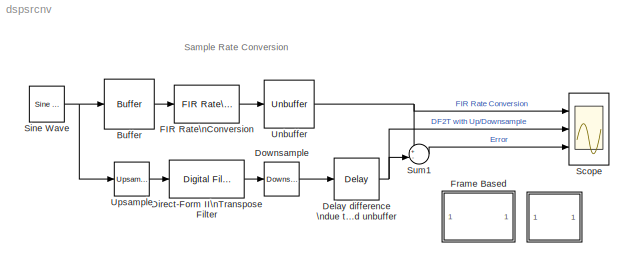
MODEL dspsrcnv
KIND model
BLOCK [SubSystem]  
  MaskDisplay = disp('Info')
  MaskIconFrame = on
  MaskIconOpaque = on
  MaskIconRotate = none
  MaskIconUnits = autoscale
  Ports = []
  TreatAsAtomicUnit = off
BLOCK [Reference] Buffer  REF=dspbuff3/Buffer
  N = 5
  Ports = [1, 1]
  SourceBlock = dspbuff3/Buffer
  SourceType = Buffer
  V = 0
  ic = 0
BLOCK [Reference] Delay difference \ndue to buffer \nand unbuffer  REF=dspsigops/Delay
  Ports = [1, 1]
  SourceBlock = dspsigops/Delay
  SourceType = Delay
  delay = 39
  dif_ic_for_ch = off
  dif_ic_for_dly = off
  dly_unit = Samples
  ic = 0
  ic_detail = on
  reset_popup = None
BLOCK [Reference] Direct-Form II\nTranspose Filter  REF=dsparch4/Digital Filter
  AllPoleFiltStruct = Direct form
  BiQuadCoeffs = [1 0.3 0.4 1 0.1 0.2]
  CoeffSource = Specify via dialog
  DenCoeffs = [1 0.1]
  FIRFiltStruct = Direct form
  FiltPerSampPopup = One filter per frame
  IC = 0
  ICden = 0
  ICnum = 0
  IIRFiltStruct = Direct form II transposed
  LatticeCoeffs = [0.2 0.4]
  NumCoeffs = fir1(63,1/8)*8
  Ports = [1, 1]
  SourceBlock = dsparch4/Digital Filter
  SourceType = Digital Filter
  TypePopup = FIR (all zeros)
  accumFracLength = 30
  accumMode = Same as product output
  accumWordLength = 32
  additionalParams = off
  allowOverrides = on
  denIgnore = on
  firstCoeffFracLength = 15
  firstCoeffMode = Same as input
  firstCoeffWordLength = 16
  memoryFracLength = 15
  memoryMode = Same as input
  memoryWordLength = 16
  outputFracLength = 15
  outputMode = Same as input
  outputWordLength = 16
  overflowMode = off
  prodOutputFracLength = 30
  prodOutputMode = Same as input
  prodOutputWordLength = 32
  roundingMode = Floor
  secondCoeffFracLength = 15
  secondCoeffMode = Same as numerator
  secondCoeffWordLength = 16
  showAcc = off
  showCoeff = off
  showMem = off
  showMpy = off
  showOut = off
  thirdCoeffFracLength = 15
  thirdCoeffMode = Same as input
  thirdCoeffWordLength = 16
BLOCK [Reference] Downsample  REF=dspsigops/Downsample
  N = 5
  Ports = [1, 1]
  SourceBlock = dspsigops/Downsample
  SourceType = Downsample
  fmode = Maintain input frame size
  ic = 0
  phase = 0
  smode = Allow multirate
BLOCK [Reference] FIR Rate\nConversion  REF=dspmlti3/FIR Rate\nConversion
  L = 8
  M = 5
  Ports = [1, 1]
  SourceBlock = dspmlti3/FIR Rate\nConversion
  SourceType = FIR Rate Conversion
  accumFracLength = 30
  accumMode = Same as product output
  accumWordLength = 32
  additionalParams = off
  allowOverrides = on
  firstCoeffFracLength = 15
  firstCoeffMode = Same word length as input
  firstCoeffWordLength = 16
  h = fir1(63,1/8)*8
  outputFracLength = 15
  outputMode = Same as accumulator
  outputWordLength = 16
  overflowMode = off
  prodOutputFracLength = 30
  prodOutputMode = Same as input
  prodOutputWordLength = 32
  roundingMode = Floor
BLOCK [SubSystem] Frame Based
  MaskDisplay = disp('Frame-based\\nVersion')
  MaskIconFrame = on
  MaskIconOpaque = on
  MaskIconRotate = none
  MaskIconUnits = autoscale
  OpenFcn = dspsrcnvf;
  Ports = []
  TreatAsAtomicUnit = off
BLOCK [Scope] Scope
  DataFormat = StructureWithTime
  LimitDataPoints = off
  NumInputPorts = 3
  Ports = [3]
  SaveName = ScopeData1
  TimeRange = 99
  YMax = 1.1~1.1~0.0127305
  YMin = -1.1~-1.1~-0.0120167
BLOCK [Reference] Sine Wave  REF=dspsrcs4/Sine Wave
  Amplitude = 1
  CompMethod = Trigonometric fcn
  Frequency = 0.1
  OutComplex = Real
  Phase = 0
  Ports = [0, 1]
  ResetState = Restart at time zero
  SampleMode = Discrete
  SampleTime = 1
  SamplesPerFrame = 1
  SourceBlock = dspsrcs4/Sine Wave
  SourceType = Sine Wave
  TableSize = Speed
  additionalParams = off
  allowOverrides = on
  dataType = double
  fracBitsMode = Best precision
  numFracBits = 14
  udDataType = sfix(16)
  wordLen = 16
BLOCK [Sum] Sum1
  IconShape = round
  Inputs = +-
  Ports = [2, 1]
BLOCK [Reference] Unbuffer  REF=dspbuff3/Unbuffer
  Ports = [1, 1]
  SourceBlock = dspbuff3/Unbuffer
  SourceType = Unbuffer
  ic = 0
BLOCK [Reference] Upsample  REF=dspsigops/Upsample
  N = 8
  Ports = [1, 1]
  SourceBlock = dspsigops/Upsample
  SourceType = Upsample
  ic = 0
  mode = Maintain input frame size
  phase = 5
ANNOTATION (root): Sample Rate Conversion
ANNOTATION  : The filter is used to bandlimit the signal to 1/max(M,L), where M and L\nare the downsampling and upsampling factors, respectively.\nFilter order should be sufficiently high so as to yield satisfactory\nreduction of aliasing and imaging artifacts.\n\nCompare the execution speed of this demo vs. that of\nthe frame-based implementation.
ANNOTATION  : This system demonstrates the equivalence between the \"FIR\nRate Conversion\" block and the straightforward but far less\nefficient system consisting of separate upsampling, FIR filtering,\nand downsampling blocks. Note that there is a delay\nbetween the input signal and the rate-conversion result.\n\nEfficiency is gained by employing a polyphase implementation\nfor up- and down-sampling. This tec...<+409ch>
ANNOTATION  : \n Digital Sample Rate Conversion:\n Sample-Based Implementation\n
LINE Buffer:1 -> FIR Rate\nConversion:1
NET Delay difference \ndue to buffer \nand unbuffer:1 -> Scope:2, Sum1:2
LINE Direct-Form II\nTranspose Filter:1 -> Downsample:1
LINE Downsample:1 -> Delay difference \ndue to buffer \nand unbuffer:1
LINE FIR Rate\nConversion:1 -> Unbuffer:1
NET Sine Wave:1 -> Buffer:1, Upsample:1
LINE Sum1:1 -> Scope:3
NET Unbuffer:1 -> Scope:1, Sum1:1
LINE Upsample:1 -> Direct-Form II\nTranspose Filter:1
note: NET lines group one-source signal fan-out (src -> all destinations, sorted); 1:1 wires keep LINE
